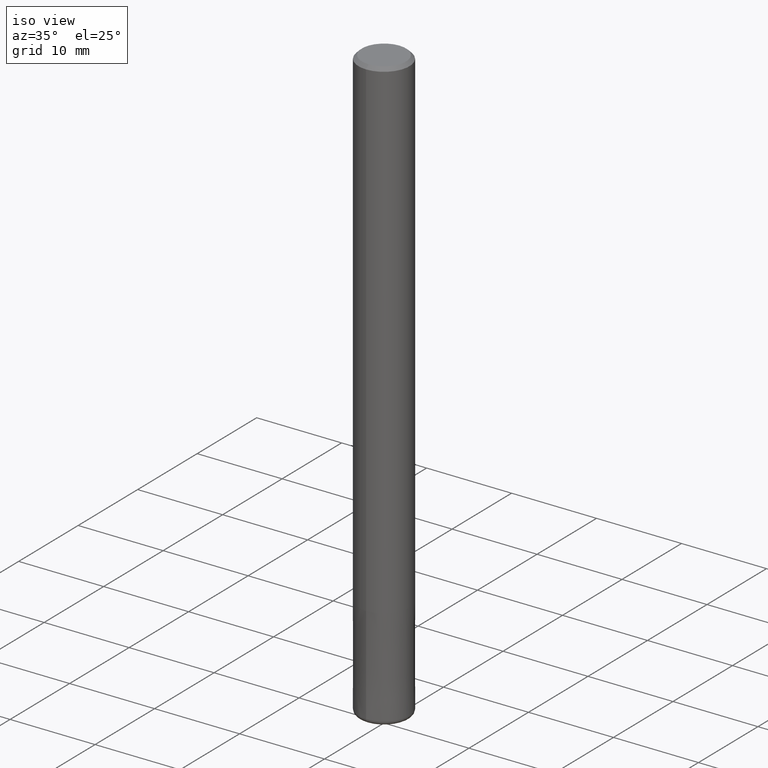
[diagram: clean part render]
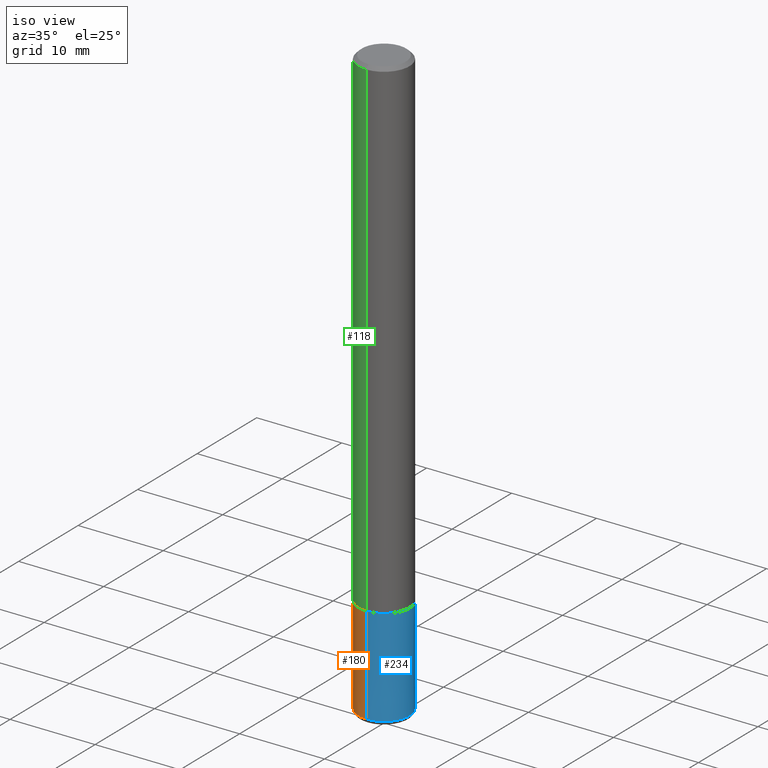
[diagram: same view with three faces highlighted in distinct colors, each labeled with its STEP entity id]
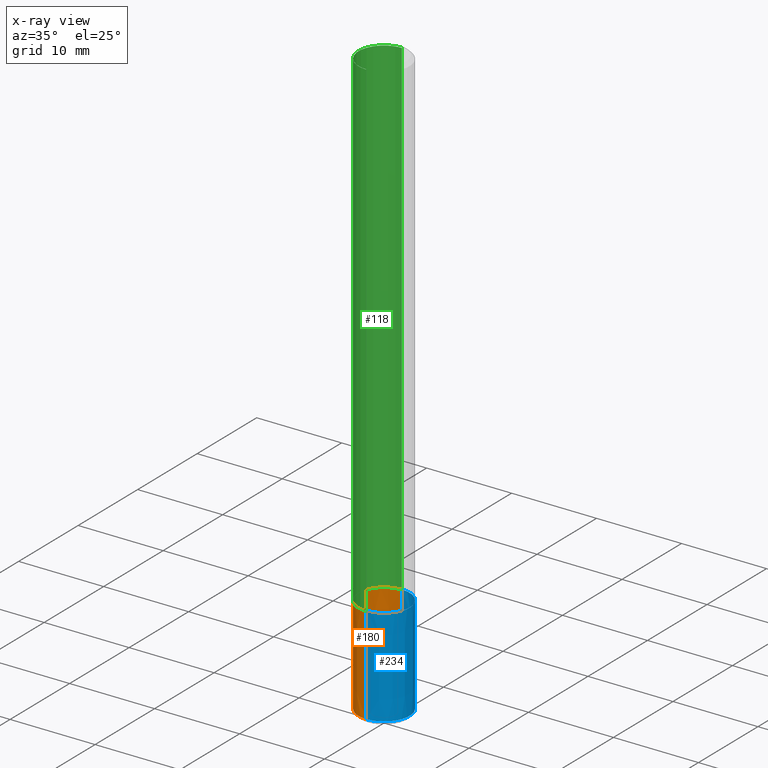
[diagram: x-ray of the same camera — body ghosted, the three highlighted faces saturated]
A machine part, iso view with three faces highlighted in distinct colors.
The next image is the same camera in x-ray (body ghosted, the three faces saturated) — at least one of them is partly hidden behind the body in this view.
Their STEP definitions:

[orange] entity #180 — the highlighted conical surface has half-angle 0 deg.
#106=EDGE_CURVE('',#184,#206,#268,.T.);
#112=EDGE_CURVE('',#198,#244,#275,.T.);
#128=EDGE_CURVE('',#206,#198,#295,.T.);
#180=ADVANCED_FACE('',(#353),#354,.T.);
#184=VERTEX_POINT('',#358);
#198=VERTEX_POINT('',#373);
#202=EDGE_CURVE('',#184,#244,#377,.T.);
#206=VERTEX_POINT('',#381);
#244=VERTEX_POINT('',#425);
#268=LINE('',#442,#443);
#275=LINE('',#450,#451);
#295=CIRCLE('',#475,2.9999);
#353=FACE_OUTER_BOUND('',#551,.T.);
#354=CONICAL_SURFACE('',#552,2.99995,8.69565217371222E-006);
#358=CARTESIAN_POINT('',(3.67381906146713E-016,-3.0,-69.5));
#373=CARTESIAN_POINT('',(0.0,2.9999,-58.0));
#377=CIRCLE('',#579,3.0);
#381=CARTESIAN_POINT('',(3.67369660083175E-016,-2.9999,-58.0));
#425=CARTESIAN_POINT('',(0.0,3.0,-69.5));
#442=CARTESIAN_POINT('',(3.67375783114944E-016,-2.99995,-63.75));
#443=VECTOR('',#648,1.0);
#450=CARTESIAN_POINT('',(-3.67375783114944E-016,2.99995,-63.75));
#451=VECTOR('',#658,1.0);
#475=AXIS2_PLACEMENT_3D('',#692,#693,#694);
#551=EDGE_LOOP('',(#766,#767,#768,#769));
#552=AXIS2_PLACEMENT_3D('',#770,#771,#772);
#579=AXIS2_PLACEMENT_3D('',#787,#788,#789);
#648=DIRECTION('',(-1.06487509024232E-021,8.69565217360264E-006,0.999999999962193));
#658=DIRECTION('',(-1.06487509024232E-021,8.69565217360264E-006,-0.999999999962193));
#692=CARTESIAN_POINT('',(0.0,0.0,-58.0));
#693=DIRECTION('',(0.0,0.0,-1.0));
#694=DIRECTION('',(0.0,1.0,0.0));
#766=ORIENTED_EDGE('',*,*,#112,.T.);
#767=ORIENTED_EDGE('',*,*,#202,.F.);
#768=ORIENTED_EDGE('',*,*,#106,.T.);
#769=ORIENTED_EDGE('',*,*,#128,.T.);
#770=CARTESIAN_POINT('',(0.0,0.0,-63.75));
#771=DIRECTION('',(0.0,-0.0,-1.0));
#772=DIRECTION('',(0.0,1.0,0.0));
#787=CARTESIAN_POINT('',(0.0,0.0,-69.5));
#788=DIRECTION('',(0.0,0.0,-1.0));
#789=DIRECTION('',(0.0,1.0,0.0));

[blue] entity #234 — the highlighted conical surface has half-angle 0 deg.
#106=EDGE_CURVE('',#184,#206,#268,.T.);
#112=EDGE_CURVE('',#198,#244,#275,.T.);
#156=EDGE_CURVE('',#244,#184,#326,.T.);
#184=VERTEX_POINT('',#358);
#198=VERTEX_POINT('',#373);
#206=VERTEX_POINT('',#381);
#214=EDGE_CURVE('',#198,#206,#391,.T.);
#234=ADVANCED_FACE('',(#414),#415,.T.);
#244=VERTEX_POINT('',#425);
#268=LINE('',#442,#443);
#275=LINE('',#450,#451);
#326=CIRCLE('',#517,3.0);
#358=CARTESIAN_POINT('',(3.67381906146713E-016,-3.0,-69.5));
#373=CARTESIAN_POINT('',(0.0,2.9999,-58.0));
#381=CARTESIAN_POINT('',(3.67369660083175E-016,-2.9999,-58.0));
#391=CIRCLE('',#595,2.9999);
#414=FACE_OUTER_BOUND('',#624,.T.);
#415=CONICAL_SURFACE('',#625,2.99995,8.69565217371222E-006);
#425=CARTESIAN_POINT('',(0.0,3.0,-69.5));
#442=CARTESIAN_POINT('',(3.67375783114944E-016,-2.99995,-63.75));
#443=VECTOR('',#648,1.0);
#450=CARTESIAN_POINT('',(-3.67375783114944E-016,2.99995,-63.75));
#451=VECTOR('',#658,1.0);
#517=AXIS2_PLACEMENT_3D('',#729,#730,#731);
#595=AXIS2_PLACEMENT_3D('',#801,#802,#803);
#624=EDGE_LOOP('',(#834,#835,#836,#837));
#625=AXIS2_PLACEMENT_3D('',#838,#839,#840);
#648=DIRECTION('',(-1.06487509024232E-021,8.69565217360264E-006,0.999999999962193));
#658=DIRECTION('',(-1.06487509024232E-021,8.69565217360264E-006,-0.999999999962193));
#729=CARTESIAN_POINT('',(0.0,0.0,-69.5));
#730=DIRECTION('',(0.0,0.0,-1.0));
#731=DIRECTION('',(0.0,1.0,0.0));
#801=CARTESIAN_POINT('',(0.0,0.0,-58.0));
#802=DIRECTION('',(0.0,0.0,-1.0));
#803=DIRECTION('',(0.0,1.0,0.0));
#834=ORIENTED_EDGE('',*,*,#112,.F.);
#835=ORIENTED_EDGE('',*,*,#214,.T.);
#836=ORIENTED_EDGE('',*,*,#106,.F.);
#837=ORIENTED_EDGE('',*,*,#156,.F.);
#838=CARTESIAN_POINT('',(0.0,0.0,-63.75));
#839=DIRECTION('',(0.0,-0.0,-1.0));
#840=DIRECTION('',(0.0,1.0,0.0));

[green] entity #118 — the highlighted cylindrical surface (edge-blend (fillet) strip) has radius 3 mm, axis along (-0, -0, 1).
#118=ADVANCED_FACE('',(#282),#283,.T.);
#124=VERTEX_POINT('',#291);
#142=VERTEX_POINT('',#310);
#144=EDGE_CURVE('',#124,#208,#312,.T.);
#174=EDGE_CURVE('',#142,#124,#347,.T.);
#178=VERTEX_POINT('',#351);
#182=EDGE_CURVE('',#178,#142,#356,.T.);
#208=VERTEX_POINT('',#383);
#232=EDGE_CURVE('',#178,#208,#412,.T.);
#282=FACE_OUTER_BOUND('',#459,.T.);
#283=CYLINDRICAL_SURFACE('',#460,3.0);
#291=CARTESIAN_POINT('',(0.0,3.0,-0.399999999999999));
#310=CARTESIAN_POINT('',(3.67381906146713E-016,-3.0,-0.399999999999999));
#312=LINE('',#496,#497);
#347=CIRCLE('',#544,3.0);
#351=CARTESIAN_POINT('',(3.67381906146713E-016,-3.0,-58.0));
#356=LINE('',#555,#556);
#383=CARTESIAN_POINT('',(0.0,3.0,-58.0));
#412=CIRCLE('',#622,3.0);
#459=EDGE_LOOP('',(#671,#672,#673,#674));
#460=AXIS2_PLACEMENT_3D('',#675,#676,#677);
#496=CARTESIAN_POINT('',(-3.67381906146713E-016,3.0,-29.2));
#497=VECTOR('',#707,1.0);
#544=AXIS2_PLACEMENT_3D('',#759,#760,#761);
#555=CARTESIAN_POINT('',(3.67381906146713E-016,-3.0,-29.2));
#556=VECTOR('',#773,1.0);
#622=AXIS2_PLACEMENT_3D('',#830,#831,#832);
#671=ORIENTED_EDGE('',*,*,#144,.T.);
#672=ORIENTED_EDGE('',*,*,#232,.F.);
#673=ORIENTED_EDGE('',*,*,#182,.T.);
#674=ORIENTED_EDGE('',*,*,#174,.T.);
#675=CARTESIAN_POINT('',(0.0,0.0,-29.2));
#676=DIRECTION('',(-0.0,-0.0,1.0));
#677=DIRECTION('',(0.0,1.0,0.0));
#707=DIRECTION('',(0.0,0.0,-1.0));
#759=CARTESIAN_POINT('',(0.0,0.0,-0.399999999999999));
#760=DIRECTION('',(0.0,0.0,-1.0));
#761=DIRECTION('',(0.0,1.0,0.0));
#773=DIRECTION('',(-0.0,-0.0,1.0));
#830=CARTESIAN_POINT('',(0.0,0.0,-58.0));
#831=DIRECTION('',(0.0,0.0,-1.0));
#832=DIRECTION('',(0.0,1.0,0.0));